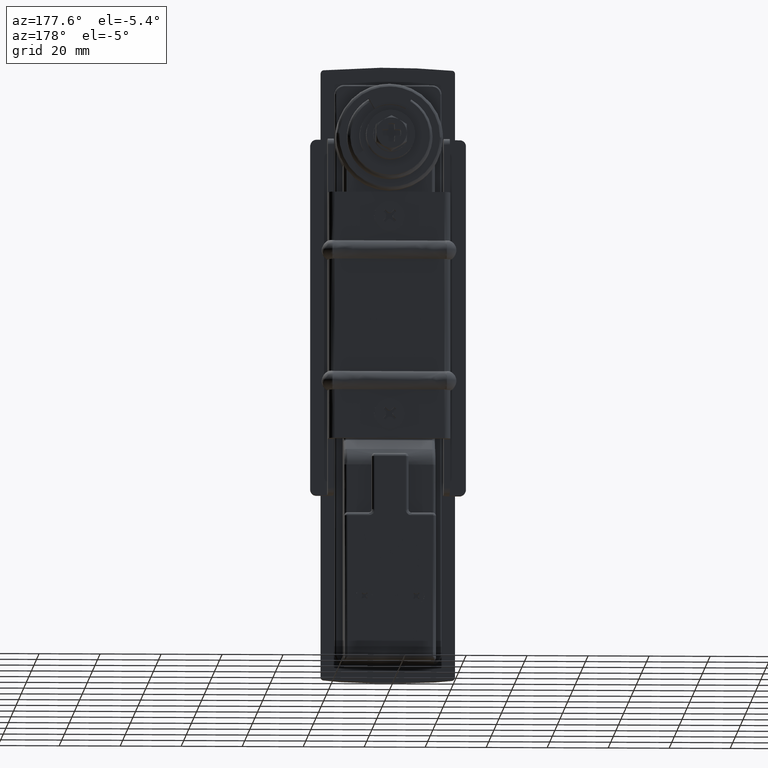
[diagram: clean part render]
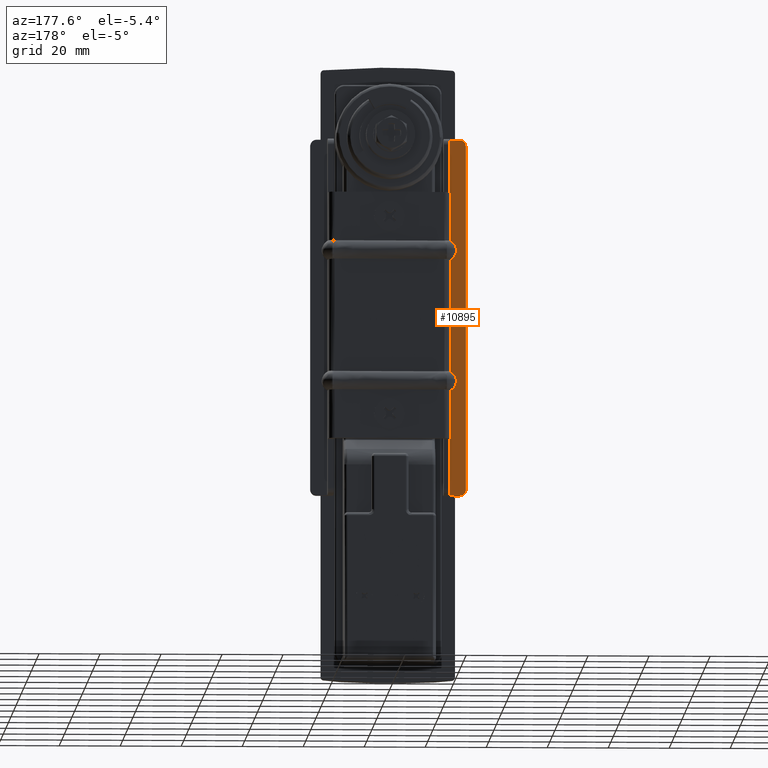
[diagram: same view with one face highlighted and labeled with its STEP entity id]
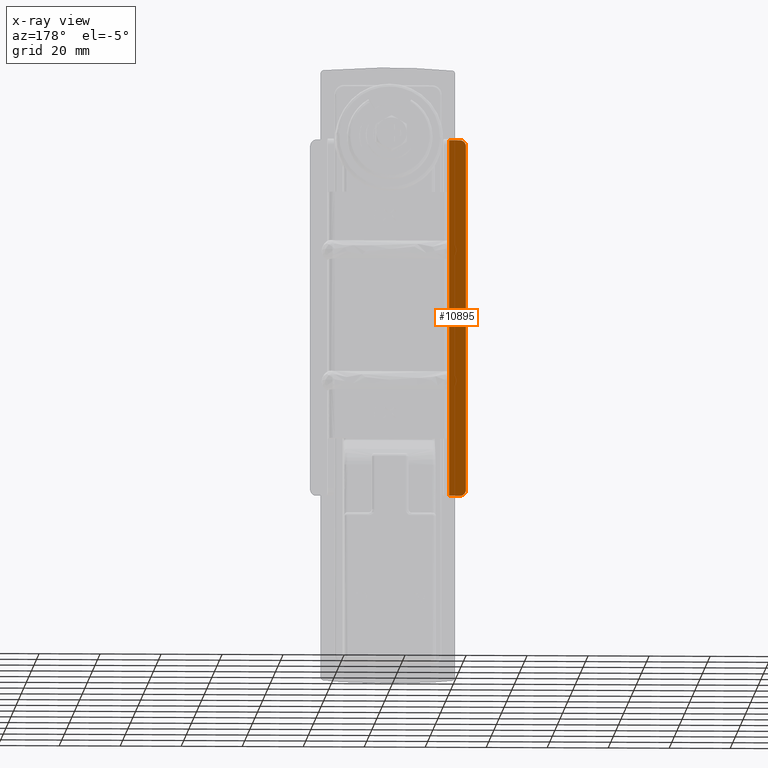
[diagram: x-ray of the same camera — body ghosted, the highlighted face saturated]
A machine part, auxiliary view. The second image highlights one B-rep face of the part: STEP entity #10895.
The next image is the same camera in x-ray: the body ghosted, the highlighted face saturated — about 0% of this face is hidden behind the body in this view.
In plain terms, the highlighted face is a freeform B-spline surface patch.
Its self-contained STEP definition (entity closure, byte-faithful):
#9285=CARTESIAN_POINT('',(7.700000000000000,23.500000000000000,-117.0));
#9286=VERTEX_POINT('',#9285);
#9287=CARTESIAN_POINT('',(7.700000000000000,25.500000000000000,-115.0));
#9288=VERTEX_POINT('',#9287);
#9289=CARTESIAN_POINT('',(7.700000000000000,23.500000000000000,-117.0));
#9290=CARTESIAN_POINT('',(7.700000000000000,25.500000000000007,-116.999999999999990));
#9291=CARTESIAN_POINT('',(7.700000000000000,25.500000000000000,-115.0));
#9299=(BOUNDED_CURVE()B_SPLINE_CURVE(2,(#9289,#9290,#9291),.UNSPECIFIED.,.F.,.U.)CURVE()GEOMETRIC_REPRESENTATION_ITEM()QUASI_UNIFORM_CURVE()RATIONAL_B_SPLINE_CURVE((1.0,0.707106781186548,1.0))REPRESENTATION_ITEM(''));
#9300=EDGE_CURVE('',#9286,#9288,#9299,.T.);
#9346=CARTESIAN_POINT('',(7.700000000000000,25.500000000000000,-2.0));
#9347=VERTEX_POINT('',#9346);
#9348=CARTESIAN_POINT('',(7.700000000000000,23.500000000000000,0.0));
#9349=VERTEX_POINT('',#9348);
#9350=CARTESIAN_POINT('',(7.700000000000000,25.500000000000000,-2.0));
#9351=CARTESIAN_POINT('',(7.700000000000000,25.500000000000007,0.0));
#9352=CARTESIAN_POINT('',(7.700000000000000,23.500000000000000,0.0));
#9360=(BOUNDED_CURVE()B_SPLINE_CURVE(2,(#9350,#9351,#9352),.UNSPECIFIED.,.F.,.U.)CURVE()GEOMETRIC_REPRESENTATION_ITEM()QUASI_UNIFORM_CURVE()RATIONAL_B_SPLINE_CURVE((1.0,0.707106781186548,1.0))REPRESENTATION_ITEM(''));
#9361=EDGE_CURVE('',#9347,#9349,#9360,.T.);
#10857=CARTESIAN_POINT('',(7.700000000000000,25.500000000000000,-115.0));
#10858=CARTESIAN_POINT('',(7.700000000000000,25.500000000000000,-2.0));
#10859=QUASI_UNIFORM_CURVE('',1,(#10857,#10858),.UNSPECIFIED.,.F.,.U.);
#10860=EDGE_CURVE('',#9288,#9347,#10859,.T.);
#10866=CARTESIAN_POINT('',(7.700000000000000,19.725275010660070,5.844149773231302));
#10867=CARTESIAN_POINT('',(7.700000000000000,19.725275010660070,-122.844152911415900));
#10868=CARTESIAN_POINT('',(7.700000000000000,25.774725136861431,5.844149773231302));
#10869=CARTESIAN_POINT('',(7.700000000000000,25.774725136861431,-122.844152911415900));
#10870=B_SPLINE_SURFACE_WITH_KNOTS('',1,1,((#10866,#10868),(#10867,#10869)),.UNSPECIFIED.,.F.,.F.,.U.,(2,2),(2,2),(0.0,128.688302684647200),(0.0,6.049450126201364),.UNSPECIFIED.);
#10871=ORIENTED_EDGE('',*,*,#10860,.T.);
#10872=ORIENTED_EDGE('',*,*,#9361,.T.);
#10873=CARTESIAN_POINT('',(7.700000000000000,20.0,0.0));
#10874=VERTEX_POINT('',#10873);
#10875=CARTESIAN_POINT('',(7.700000000000000,20.0,0.0));
#10876=CARTESIAN_POINT('',(7.700000000000000,23.500000000000000,0.0));
#10877=QUASI_UNIFORM_CURVE('',1,(#10875,#10876),.UNSPECIFIED.,.F.,.U.);
#10878=EDGE_CURVE('',#10874,#9349,#10877,.T.);
#10879=ORIENTED_EDGE('',*,*,#10878,.F.);
#10880=CARTESIAN_POINT('',(7.700000000000000,20.0,-117.0));
#10881=VERTEX_POINT('',#10880);
#10882=CARTESIAN_POINT('',(7.700000000000000,20.0,-117.0));
#10883=CARTESIAN_POINT('',(7.700000000000000,20.0,0.0));
#10884=QUASI_UNIFORM_CURVE('',1,(#10882,#10883),.UNSPECIFIED.,.F.,.U.);
#10885=EDGE_CURVE('',#10881,#10874,#10884,.T.);
#10886=ORIENTED_EDGE('',*,*,#10885,.F.);
#10887=CARTESIAN_POINT('',(7.700000000000000,20.0,-117.0));
#10888=CARTESIAN_POINT('',(7.700000000000000,23.500000000000000,-117.0));
#10889=QUASI_UNIFORM_CURVE('',1,(#10887,#10888),.UNSPECIFIED.,.F.,.U.);
#10890=EDGE_CURVE('',#10881,#9286,#10889,.T.);
#10891=ORIENTED_EDGE('',*,*,#10890,.T.);
#10892=ORIENTED_EDGE('',*,*,#9300,.T.);
#10893=EDGE_LOOP('',(#10871,#10872,#10879,#10886,#10891,#10892));
#10894=FACE_OUTER_BOUND('',#10893,.T.);
#10895=ADVANCED_FACE('',(#10894),#10870,.T.);